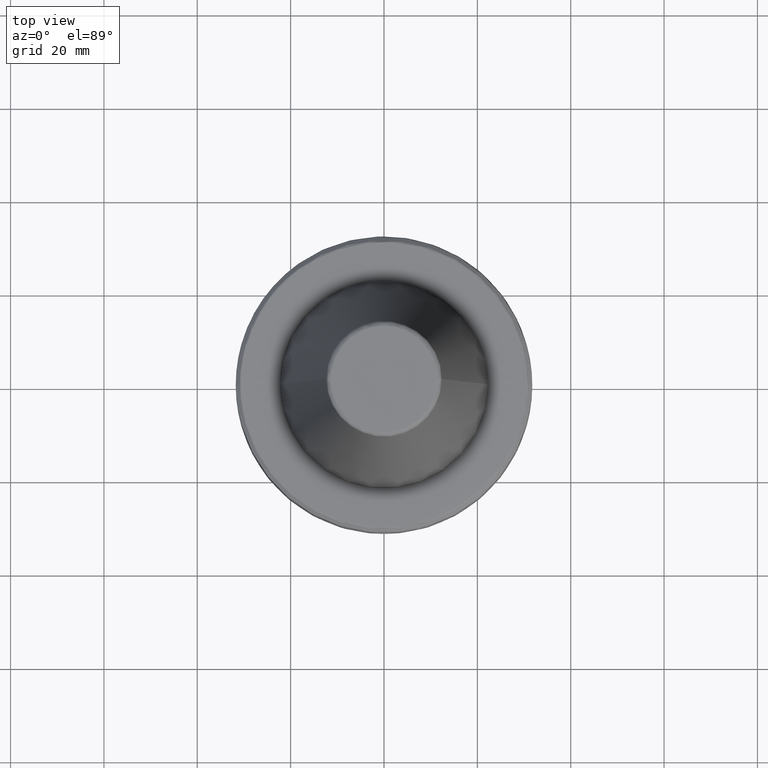
[diagram: clean part render]
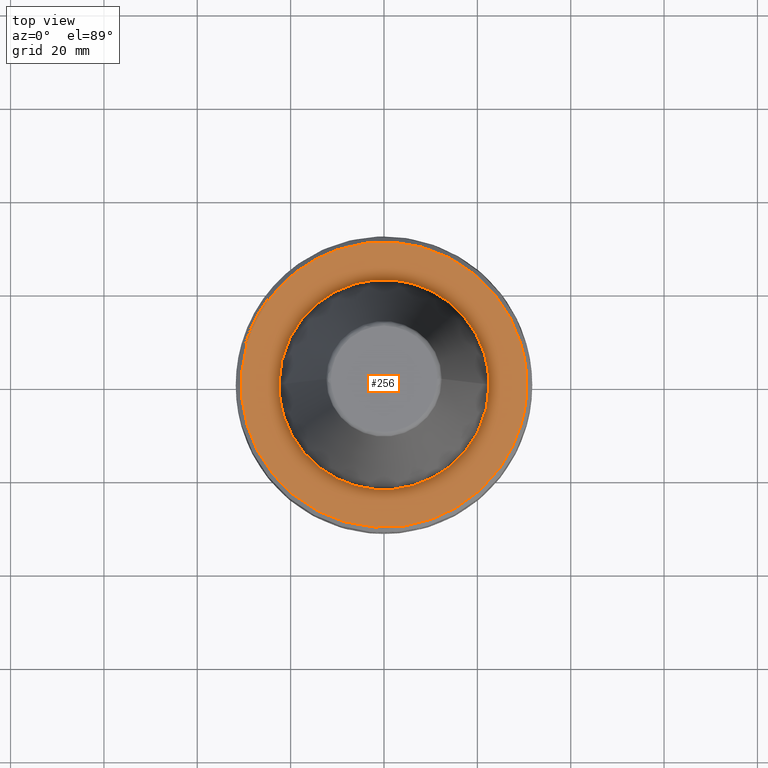
[diagram: same view with one face highlighted and labeled with its STEP entity id]
A machine part, top view. The second image highlights one B-rep face of the part: STEP entity #256.
In plain terms, the highlighted planar face has unit normal (0, 0, 1).
Its self-contained STEP definition (entity closure, byte-faithful):
#8 = CARTESIAN_POINT ( 'NONE',  ( 22.13216582914422800, -4.051871761185046800, -3.199999999999999300 ) ) ;
#22 = CARTESIAN_POINT ( 'NONE',  ( 19.18907189198100100, -11.75138774876444200, -3.200000000000001100 ) ) ;
#31 = CARTESIAN_POINT ( 'NONE',  ( 11.67597141480891300, -19.24838585783804100, -3.200000000000000600 ) ) ;
#37 = CARTESIAN_POINT ( 'NONE',  ( 4.251028217301676900, -22.09485092206981000, -3.200000000000000200 ) ) ;
#38 = EDGE_CURVE ( 'NONE', #2343, #2340, #2352, .T. ) ;
#44 = CARTESIAN_POINT ( 'NONE',  ( -4.051866326836864700, -22.13216683465148900, -3.199999999999999700 ) ) ;
#46 = VERTEX_POINT ( 'NONE', #2482 ) ;
#47 = CIRCLE ( 'NONE', #634, 30.58431457505076500 ) ;
#53 = CARTESIAN_POINT ( 'NONE',  ( 4.071751450878374500, 22.12851860711415200, -3.200000000000000200 ) ) ;
#55 = CARTESIAN_POINT ( 'NONE',  ( -11.75138774876684200, -19.18907189198004900, -3.200000000000000200 ) ) ;
#62 = CARTESIAN_POINT ( 'NONE',  ( 11.99256734167953400, 19.03780993567986700, -3.199999999999999300 ) ) ;
#63 = CARTESIAN_POINT ( 'NONE',  ( -19.24838585782649900, -11.67597141482940200, -3.199999999999999700 ) ) ;
#73 = CARTESIAN_POINT ( 'NONE',  ( 19.82135572083119300, 10.69502432680279600, -3.200000000000000600 ) ) ;
#74 = CARTESIAN_POINT ( 'NONE',  ( -22.09485092206732700, -4.251028217309717600, -3.200000000000000600 ) ) ;
#83 = CARTESIAN_POINT ( 'NONE',  ( 22.10760170058146200, 4.183831549483062200, -3.200000000000000200 ) ) ;
#99 = AXIS2_PLACEMENT_3D ( 'NONE', #991, #2632, #1238 ) ;
#108 = CARTESIAN_POINT ( 'NONE',  ( 2.907343231789928200, 22.31611948088413700, -3.200000000000001100 ) ) ;
#110 = CARTESIAN_POINT ( 'NONE',  ( 28.33583760078838100, 11.62329757012845700, -3.200000000000000600 ) ) ;
#122 = CARTESIAN_POINT ( 'NONE',  ( 22.77429056693588900, 20.45246270164044200, -3.200000000000001100 ) ) ;
#132 = CARTESIAN_POINT ( 'NONE',  ( 16.13498759199762100, 25.98207429179320400, -3.199999999999999700 ) ) ;
#139 = CARTESIAN_POINT ( 'NONE',  ( -0.1069271606581412600, 30.58574494882752100, -3.200000000000001100 ) ) ;
#144 = CARTESIAN_POINT ( 'NONE',  ( -21.99164062164871000, 4.811519987923173100, -3.200000000000001100 ) ) ;
#149 = CARTESIAN_POINT ( 'NONE',  ( -11.24038425294622500, 28.44688173160703600, -3.199999999999999300 ) ) ;
#157 = CARTESIAN_POINT ( 'NONE',  ( -27.71504625243770200, -12.93363446211562200, -3.200000000000000600 ) ) ;
#158 = CARTESIAN_POINT ( 'NONE',  ( -18.93590339580232400, 12.15280497094196100, -3.199999999999999700 ) ) ;
#171 = CARTESIAN_POINT ( 'NONE',  ( -23.04904609324717800, -20.11097302515148000, -3.200000000000001100 ) ) ;
#172 = CARTESIAN_POINT ( 'NONE',  ( -9.504079748845599700, 20.40055232577251900, -3.200000000000001500 ) ) ;
#177 = DIRECTION ( 'NONE',  ( 1.000000000000000000, 0.0000000000000000000, 0.0000000000000000000 ) ) ;
#185 = CARTESIAN_POINT ( 'NONE',  ( -14.07778958758137100, -27.15192223846998900, -3.200000000000000200 ) ) ;
#186 = CARTESIAN_POINT ( 'NONE',  ( -4.139014538617297000, 22.11603594838256000, -3.200000000000000200 ) ) ;
#188 = CARTESIAN_POINT ( 'NONE',  ( 0.0000000000000000000, 0.0000000000000000000, -3.200000000000000200 ) ) ;
#200 = CARTESIAN_POINT ( 'NONE',  ( -5.007473042363042900, -30.17190452210243400, -3.199999999999999700 ) ) ;
#213 = CARTESIAN_POINT ( 'NONE',  ( 4.606748291940482100, -30.23542110148255100, -3.200000000000001100 ) ) ;
#217 = CARTESIAN_POINT ( 'NONE',  ( -24.35467712833948900, 18.50000000000000000, -3.199999999999994400 ) ) ;
#225 = CARTESIAN_POINT ( 'NONE',  ( 13.61336996244277300, -27.38773233231018600, -3.200000000000001500 ) ) ;
#233 = CARTESIAN_POINT ( 'NONE',  ( 23.46525560282735900, -19.64699716460515300, -3.200000000000000200 ) ) ;
#242 = CIRCLE ( 'NONE', #837, 30.58431457505076500 ) ;
#251 = CARTESIAN_POINT ( 'NONE',  ( 21.99164062164117800, -4.811519987949947300, -3.200000000000000600 ) ) ;
#256 = ADVANCED_FACE ( 'NONE', ( #1189, #1955 ), #1567, .T. ) ;
#259 = CARTESIAN_POINT ( 'NONE',  ( 18.93590339580105900, -12.15280497094321500, -3.200000000000000200 ) ) ;
#267 = CARTESIAN_POINT ( 'NONE',  ( 9.504079748831721000, -20.40055232577914500, -3.200000000000000600 ) ) ;
#275 = CARTESIAN_POINT ( 'NONE',  ( 4.139014538615635200, -22.11603594838316400, -3.200000000000000200 ) ) ;
#280 = ORIENTED_EDGE ( 'NONE', *, *, #2230, .T. ) ;
#284 = CARTESIAN_POINT ( 'NONE',  ( -4.811519987949943700, -21.99164062164117100, -3.199999999999999700 ) ) ;
#291 = CARTESIAN_POINT ( 'NONE',  ( 5.873028755120320600, 21.74157624393063400, -3.200000000000000600 ) ) ;
#292 = CARTESIAN_POINT ( 'NONE',  ( -12.15280497094398100, -18.93590339580075400, -3.199999999999999700 ) ) ;
#299 = CARTESIAN_POINT ( 'NONE',  ( 12.23098025896375600, 18.88550870197690300, -3.199999999999999700 ) ) ;
#300 = CARTESIAN_POINT ( 'NONE',  ( -20.40055232576401100, -9.504079748858595500, -3.199999999999999700 ) ) ;
#309 = CARTESIAN_POINT ( 'NONE',  ( 20.66783356944120300, 8.896980882709847500, -3.200000000000000200 ) ) ;
#310 = CARTESIAN_POINT ( 'NONE',  ( -22.11603594838243900, -4.139014538617989700, -3.200000000000000600 ) ) ;
#315 = CARTESIAN_POINT ( 'NONE',  ( 22.12045798509555900, 4.115310202398825700, -3.200000000000000600 ) ) ;
#348 = CARTESIAN_POINT ( 'NONE',  ( 26.94337422490542300, 14.47847139620824000, -3.200000000000000200 ) ) ;
#356 = CARTESIAN_POINT ( 'NONE',  ( 20.78517142377217700, 22.45144644049074500, -3.199999999999999700 ) ) ;
#365 = CARTESIAN_POINT ( 'NONE',  ( 11.80488663217673900, 28.31907149285062900, -3.199999999999999700 ) ) ;
#372 = CARTESIAN_POINT ( 'NONE',  ( -22.50000000000000400, 2.755455298081544800E-015, -3.199999999999999300 ) ) ;
#377 = CARTESIAN_POINT ( 'NONE',  ( -1.037282440228860500, 30.56832190550300900, -3.200000000000000600 ) ) ;
#386 = CARTESIAN_POINT ( 'NONE',  ( -24.35467712833948900, 18.50000000000000000, -3.199999999999994400 ) ) ;
#387 = CARTESIAN_POINT ( 'NONE',  ( -21.36063849916189700, 7.086048807666240500, -3.199999999999999300 ) ) ;
#390 = CARTESIAN_POINT ( 'NONE',  ( -11.95872026362621900, 28.14951867898244600, -3.200000000000000200 ) ) ;
#397 = CARTESIAN_POINT ( 'NONE',  ( -27.65365956857750300, -13.06437642884285200, -3.199999999999999700 ) ) ;
#398 = CARTESIAN_POINT ( 'NONE',  ( -17.98264380950361400, 13.61204652639205500, -3.199999999999999700 ) ) ;
#406 = CARTESIAN_POINT ( 'NONE',  ( -22.34825637510676100, -20.87982665237620600, -3.200000000000000200 ) ) ;
#407 = CARTESIAN_POINT ( 'NONE',  ( -8.590524805356333000, 20.79589492657273900, -3.199999999999999700 ) ) ;
#423 = CARTESIAN_POINT ( 'NONE',  ( -12.11250377912194600, -28.10533704285466800, -3.200000000000001100 ) ) ;
#424 = CARTESIAN_POINT ( 'NONE',  ( -2.741286511587084400, 22.37475781688785000, -3.200000000000000200 ) ) ;
#435 = CARTESIAN_POINT ( 'NONE',  ( -4.757131534841852800, -30.21212539776593100, -3.200000000000000600 ) ) ;
#444 = CARTESIAN_POINT ( 'NONE',  ( 6.650821378641679400, -29.87181404184202200, -3.200000000000000600 ) ) ;
#446 = CARTESIAN_POINT ( 'NONE',  ( -25.46593605709676900, 17.03706203157484100, -3.199999999999999700 ) ) ;
#451 = B_SPLINE_CURVE_WITH_KNOTS ( 'NONE', 3,
 ( #476, #707, #2339, #931, #2575, #1178, #2822, #1414, #8, #1654, #251, #1896, #483, #2122, #716, #2350, #939, #2587, #1188, #2829, #1420, #22, #1663, #259, #1907, #496, #2131, #725, #2360, #948, #2592, #1202, #2837, #1430, #31, #1671, #267, #1915, #503, #2138, #733, #2368, #957, #2598, #1209, #2846, #1437, #37, #1676, #275, #1921, #508, #2147, #743, #2374, #965, #2609, #1215, #2850, #1446, #44, #1682, #284, #1929, #514, #2153, #753, #2382, #974, #2620, #1225, #2857, #1456, #55, #1688, #292, #1936, #529, #2162, #763, #2397, #985, #2628, #1233, #2868, #1463, #63, #1700, #300, #1945, #536, #2169, #770, #2404, #998, #2636, #1242, #2881, #1473, #74, #1706, #310, #1954, #547, #2178, #780 ),
 .UNSPECIFIED., .F., .F.,
 ( 4, 1, 1, 1, 1, 1, 2, 2, 1, 1, 1, 1, 2, 2, 1, 1, 1, 2, 2, 2, 1, 1, 1, 2, 2, 1, 1, 1, 1, 2, 2, 1, 1, 1, 1, 1, 2, 2, 2, 1, 1, 1, 1, 1, 2, 2, 1, 1, 1, 1, 2, 2, 1, 1, 1, 2, 2, 2, 1, 1, 1, 2, 2, 1, 1, 1, 1, 2, 2, 1, 1, 1, 1, 1, 2, 2, 4 ),
 ( 0.0000000000000000000, 0.03124999999999908400, 0.04687499999999860500, 0.05468749999999836900, 0.05859374999999825800, 0.06054687499999819600, 0.06152343749999818900, 0.06249999999999818200, 0.09374999999999732200, 0.1093749999999968900, 0.1171874999999966700, 0.1210937499999965400, 0.1230468749999965400, 0.1249999999999965300, 0.1562499999999963600, 0.1718749999999962500, 0.1796874999999961700, 0.1835937499999960900, 0.1874999999999960000, 0.2499999999999953400, 0.2812499999999949500, 0.2968749999999948400, 0.3046874999999947800, 0.3085937499999947800, 0.3124999999999947800, 0.3437499999999951200, 0.3593749999999953400, 0.3671874999999953900, 0.3710937499999954500, 0.3730468749999955000, 0.3749999999999955600, 0.4062499999999958400, 0.4218749999999960000, 0.4296874999999960600, 0.4335937499999960600, 0.4355468749999960600, 0.4365234374999960600, 0.4374999999999960000, 0.4999999999999953400, 0.5312499999999950000, 0.5468749999999947800, 0.5546874999999946700, 0.5585937499999946700, 0.5605468749999945600, 0.5615234374999945600, 0.5624999999999944500, 0.5937499999999942300, 0.6093749999999941200, 0.6171874999999940000, 0.6210937499999938900, 0.6230468749999940000, 0.6249999999999940000, 0.6562499999999947800, 0.6718749999999952300, 0.6796874999999954500, 0.6835937499999955600, 0.6874999999999955600, 0.7499999999999982200, 0.7812499999999995600, 0.7968750000000002200, 0.8046875000000005600, 0.8085937500000007800, 0.8125000000000008900, 0.8437500000000022200, 0.8593750000000028900, 0.8671875000000032200, 0.8710937500000033300, 0.8730468750000034400, 0.8750000000000034400, 0.9062500000000028900, 0.9218750000000026600, 0.9296875000000025500, 0.9335937500000024400, 0.9355468750000023300, 0.9365234375000023300, 0.9375000000000022200, 1.000000000000000000 ),
 .UNSPECIFIED. ) ;
#453 = CARTESIAN_POINT ( 'NONE',  ( 13.89121605745029900, -27.24785232258835400, -3.199999999999999700 ) ) ;
#469 = CARTESIAN_POINT ( 'NONE',  ( 24.79077054220048000, -17.91356280173779000, -3.199999999999999300 ) ) ;
#476 = CARTESIAN_POINT ( 'NONE',  ( 22.50000000000000400, 0.0000000000000000000, -3.199999999999999300 ) ) ;
#483 = CARTESIAN_POINT ( 'NONE',  ( 21.36063849915200700, -7.086048807701382100, -3.199999999999998800 ) ) ;
#496 = CARTESIAN_POINT ( 'NONE',  ( 17.98264380952407700, -13.61204652636657500, -3.199999999999999700 ) ) ;
#503 = CARTESIAN_POINT ( 'NONE',  ( 8.590524805351991600, -20.79589492657481400, -3.199999999999999700 ) ) ;
#508 = CARTESIAN_POINT ( 'NONE',  ( 2.741286511513688400, -22.37475781689234500, -3.199999999999999700 ) ) ;
#514 = CARTESIAN_POINT ( 'NONE',  ( -7.086048807701388300, -21.36063849915201700, -3.200000000000001100 ) ) ;
#528 = CARTESIAN_POINT ( 'NONE',  ( 7.686207123274499500, 21.14787063409919600, -3.200000000000000600 ) ) ;
#529 = CARTESIAN_POINT ( 'NONE',  ( -13.61204652640028800, -17.98264380950038800, -3.200000000000000200 ) ) ;
#535 = CARTESIAN_POINT ( 'NONE',  ( 14.81177920650271000, 17.00797338683744500, -3.200000000000000600 ) ) ;
#536 = CARTESIAN_POINT ( 'NONE',  ( -20.79589492657008900, -8.590524805360397300, -3.200000000000000200 ) ) ;
#543 = ORIENTED_EDGE ( 'NONE', *, *, #1716, .T. ) ;
#546 = CARTESIAN_POINT ( 'NONE',  ( 20.84958280862257900, 8.458563634141711400, -3.200000000000000200 ) ) ;
#547 = CARTESIAN_POINT ( 'NONE',  ( -22.37479026312430700, -2.741111199249898400, -3.200000000000000600 ) ) ;
#556 = CARTESIAN_POINT ( 'NONE',  ( 22.50000000000000400, 1.376388306145680500, -3.200000000000000200 ) ) ;
#565 = VERTEX_POINT ( 'NONE', #2312 ) ;
#580 = CARTESIAN_POINT ( 'NONE',  ( 26.57327955334341100, 15.14158967653128800, -3.199999999999999300 ) ) ;
#592 = CARTESIAN_POINT ( 'NONE',  ( 19.60237854233957200, 23.47705769605833500, -3.200000000000000200 ) ) ;
#595 = ORIENTED_EDGE ( 'NONE', *, *, #1836, .T. ) ;
#606 = CARTESIAN_POINT ( 'NONE',  ( 6.576107746342494800, 29.91282126789445400, -3.199999999999999300 ) ) ;
#613 = CARTESIAN_POINT ( 'NONE',  ( -3.848954711156217900, 30.36703951690235600, -3.200000000000000200 ) ) ;
#618 = CARTESIAN_POINT ( 'NONE',  ( -21.03591195339058500, 7.984698353433742600, -3.200000000000000600 ) ) ;
#622 = CARTESIAN_POINT ( 'NONE',  ( -12.17478045277850300, 28.05674127324150300, -3.200000000000001100 ) ) ;
#628 = CARTESIAN_POINT ( 'NONE',  ( -26.72045296951694100, -14.91898429064515100, -3.200000000000001100 ) ) ;
#629 = CARTESIAN_POINT ( 'NONE',  ( -15.36086717163463800, 16.45896426178976300, -3.200000000000001100 ) ) ;
#634 = AXIS2_PLACEMENT_3D ( 'NONE', #1263, #2899, #1488 ) ;
#636 = VERTEX_POINT ( 'NONE', #656 ) ;
#643 = VERTEX_POINT ( 'NONE', #1173 ) ;
#644 = CARTESIAN_POINT ( 'NONE',  ( -22.13473294562287600, -21.10604030069013600, -3.200000000000000600 ) ) ;
#645 = CARTESIAN_POINT ( 'NONE',  ( -8.370451108366790300, 20.88510905071707000, -3.200000000000000200 ) ) ;
#656 = CARTESIAN_POINT ( 'NONE',  ( -22.50000000000000400, 2.755455298081544800E-015, -3.199999999999999300 ) ) ;
#657 = CARTESIAN_POINT ( 'NONE',  ( -10.07230210985404100, -28.87952157733320000, -3.200000000000000600 ) ) ;
#658 = CARTESIAN_POINT ( 'NONE',  ( 0.6879287486189594700, 22.50001621479642500, -3.199999999999999300 ) ) ;
#669 = CARTESIAN_POINT ( 'NONE',  ( -3.114025609210415700, -30.46541640381289900, -3.199999999999999700 ) ) ;
#679 = CARTESIAN_POINT ( 'NONE',  ( 8.703095408813183600, -29.32115263377833300, -3.199999999999999700 ) ) ;
#683 = CARTESIAN_POINT ( 'NONE',  ( -28.10145510426450200, 12.21006217780604800, -3.200000000000000200 ) ) ;
#691 = CARTESIAN_POINT ( 'NONE',  ( 16.91770336023969200, -25.53517509604582600, -3.200000000000000600 ) ) ;
#699 = CARTESIAN_POINT ( 'NONE',  ( 25.09107183107505900, -17.48831565734377900, -3.200000000000000200 ) ) ;
#707 = CARTESIAN_POINT ( 'NONE',  ( 22.49999999999999600, -0.6880163828697204400, -3.199999999999998800 ) ) ;
#716 = CARTESIAN_POINT ( 'NONE',  ( 21.03591195338748300, -7.984698353444730200, -3.199999999999999300 ) ) ;
#725 = CARTESIAN_POINT ( 'NONE',  ( 15.36086717163637700, -16.45896426179050900, -3.199999999999999700 ) ) ;
#733 = CARTESIAN_POINT ( 'NONE',  ( 8.370451108365493600, -20.88510905071769100, -3.200000000000001100 ) ) ;
#743 = CARTESIAN_POINT ( 'NONE',  ( -0.6879287486564484900, -22.50001621479418300, -3.200000000000000200 ) ) ;
#753 = CARTESIAN_POINT ( 'NONE',  ( -7.984698353444732000, -21.03591195338748700, -3.200000000000000200 ) ) ;
#762 = CARTESIAN_POINT ( 'NONE',  ( 8.112282896138385300, 20.98673507276721400, -3.200000000000000200 ) ) ;
#763 = CARTESIAN_POINT ( 'NONE',  ( -16.45896426179448100, -15.36086717162741000, -3.200000000000001100 ) ) ;
#769 = CARTESIAN_POINT ( 'NONE',  ( 17.23607257883289300, 14.49938022713325700, -3.200000000000000200 ) ) ;
#770 = CARTESIAN_POINT ( 'NONE',  ( -20.88510905071626700, -8.370451108368008900, -3.199999999999999700 ) ) ;
#779 = CARTESIAN_POINT ( 'NONE',  ( 20.90345235396888100, 8.324524703928553000, -3.200000000000000200 ) ) ;
#780 = CARTESIAN_POINT ( 'NONE',  ( -22.50000000000000400, 2.755455298081544800E-015, -3.199999999999999300 ) ) ;
#783 = ORIENTED_EDGE ( 'NONE', *, *, #1854, .T. ) ;
#812 = CARTESIAN_POINT ( 'NONE',  ( 26.46043628646894400, 15.33791319425575300, -3.200000000000000600 ) ) ;
#819 = CARTESIAN_POINT ( 'NONE',  ( 29.30593451889331300, -8.750000000000001800, -3.199999999999994400 ) ) ;
#824 = CARTESIAN_POINT ( 'NONE',  ( 19.23818591257921900, 23.77638626440857200, -3.200000000000001100 ) ) ;
#833 = CARTESIAN_POINT ( 'NONE',  ( 3.435970030502951900, 30.39351583441294100, -3.199999999999999700 ) ) ;
#835 = CARTESIAN_POINT ( 'NONE',  ( 29.30593451889330900, 8.750000000000010700, -3.199999999999994400 ) ) ;
#837 = AXIS2_PLACEMENT_3D ( 'NONE', #2986, #1587, #177 ) ;
#839 = CARTESIAN_POINT ( 'NONE',  ( -22.31609819896381800, 2.907458251726792000, -3.199999999999999700 ) ) ;
#843 = CARTESIAN_POINT ( 'NONE',  ( -6.624788100412467400, 29.86976700629700700, -3.200000000000001100 ) ) ;
#852 = CARTESIAN_POINT ( 'NONE',  ( -20.95368502148434700, 8.197263642344069000, -3.199999999999999300 ) ) ;
#857 = CARTESIAN_POINT ( 'NONE',  ( -16.56085603394842200, 25.82766579425001700, -3.199999999999999700 ) ) ;
#861 = CARTESIAN_POINT ( 'NONE',  ( -25.60566437920638400, -16.72793511368144300, -3.199999999999999700 ) ) ;
#862 = CARTESIAN_POINT ( 'NONE',  ( -13.42792791067768300, 18.06135158014102500, -3.200000000000000200 ) ) ;
#872 = CARTESIAN_POINT ( 'NONE',  ( -19.62778218944514600, -23.51603751686526800, -3.200000000000001100 ) ) ;
#873 = CARTESIAN_POINT ( 'NONE',  ( -7.603831144568696100, 21.18878749287429700, -3.200000000000000200 ) ) ;
#885 = CARTESIAN_POINT ( 'NONE',  ( -9.578915174272756500, -29.04560989628474800, -3.199999999999999700 ) ) ;
#899 = CARTESIAN_POINT ( 'NONE',  ( 0.7805261269332110000, -30.58432787732824200, -3.200000000000000600 ) ) ;
#908 = CARTESIAN_POINT ( 'NONE',  ( 9.187465360224598100, -29.17179097118384600, -3.200000000000000200 ) ) ;
#913 = CARTESIAN_POINT ( 'NONE',  ( -29.30593451889331300, 8.750000000000008900, -3.199999999999999300 ) ) ;
#916 = CARTESIAN_POINT ( 'NONE',  ( 19.93203895168906900, -23.22435209602277700, -3.199999999999999700 ) ) ;
#923 = CARTESIAN_POINT ( 'NONE',  ( 25.18089566416776700, -17.35872434407947300, -3.200000000000000200 ) ) ;
#931 = CARTESIAN_POINT ( 'NONE',  ( 22.31609819896382200, -2.907458251744042200, -3.200000000000000600 ) ) ;
#939 = CARTESIAN_POINT ( 'NONE',  ( 20.95368502148340500, -8.197263642347369500, -3.199999999999999700 ) ) ;
#941 = ORIENTED_EDGE ( 'NONE', *, *, #1782, .T. ) ;
#948 = CARTESIAN_POINT ( 'NONE',  ( 13.42792791067997600, -18.06135158014202000, -3.199999999999999700 ) ) ;
#957 = CARTESIAN_POINT ( 'NONE',  ( 7.603831144541866000, -21.18878749288407800, -3.200000000000000200 ) ) ;
#961 = AXIS2_PLACEMENT_3D ( 'NONE', #188, #1341, #1352 ) ;
#965 = CARTESIAN_POINT ( 'NONE',  ( -2.907343231839132800, -22.31611948088118800, -3.200000000000000600 ) ) ;
#973 = CARTESIAN_POINT ( 'NONE',  ( 3.501364879195867800, 22.22709431610727600, -3.200000000000000600 ) ) ;
#974 = CARTESIAN_POINT ( 'NONE',  ( -8.197263642347373000, -20.95368502148340900, -3.199999999999999700 ) ) ;
#984 = CARTESIAN_POINT ( 'NONE',  ( 8.237955812653522600, 20.93772414133914200, -3.199999999999999700 ) ) ;
#985 = CARTESIAN_POINT ( 'NONE',  ( -18.06135158014722800, -13.42792791066820300, -3.200000000000000600 ) ) ;
#991 = CARTESIAN_POINT ( 'NONE',  ( 0.0000000000000000000, 0.0000000000000000000, -3.199999999999994400 ) ) ;
#996 = CARTESIAN_POINT ( 'NONE',  ( 18.45365423866382000, 12.87560569879649600, -3.200000000000000200 ) ) ;
#998 = CARTESIAN_POINT ( 'NONE',  ( -21.18878749287234700, -7.603831144579803700, -3.199999999999998800 ) ) ;
#1005 = CARTESIAN_POINT ( 'NONE',  ( 21.54071728404044400, 6.571610993388965500, -3.200000000000000200 ) ) ;
#1032 = VERTEX_POINT ( 'NONE', #835 ) ;
#1036 = CARTESIAN_POINT ( 'NONE',  ( 27.58831379343103400, -13.20180910046895500, -3.199999999999999300 ) ) ;
#1037 = CARTESIAN_POINT ( 'NONE',  ( 28.95764183663448000, 9.916519147392794100, -3.200000000000000600 ) ) ;
#1047 = CARTESIAN_POINT ( 'NONE',  ( 25.61393462943019000, 16.73340307646572400, -3.200000000000000200 ) ) ;
#1058 = CARTESIAN_POINT ( 'NONE',  ( 17.88588114721943300, 24.82288649367548000, -3.199999999999999700 ) ) ;
#1068 = CARTESIAN_POINT ( 'NONE',  ( 2.680059272113613800, 30.46677238501893500, -3.199999999999999700 ) ) ;
#1078 = CARTESIAN_POINT ( 'NONE',  ( -22.17743819738468900, 3.797954953880907400, -3.199999999999999700 ) ) ;
#1081 = CARTESIAN_POINT ( 'NONE',  ( -8.141340568208145000, 29.48124923292406800, -3.199999999999999700 ) ) ;
#1086 = CARTESIAN_POINT ( 'NONE',  ( -20.64043889494947600, 8.988933404968230800, -3.200000000000000600 ) ) ;
#1097 = CARTESIAN_POINT ( 'NONE',  ( -25.32397030503309300, -17.14932757286798500, -3.200000000000000200 ) ) ;
#1098 = CARTESIAN_POINT ( 'NONE',  ( -12.63533988221804100, 18.61742605470986000, -3.200000000000000200 ) ) ;
#1116 = CARTESIAN_POINT ( 'NONE',  ( -16.55116382284848000, -25.74326481162033500, -3.200000000000000200 ) ) ;
#1117 = CARTESIAN_POINT ( 'NONE',  ( -5.341505914849514100, 21.86223353762529300, -3.200000000000000600 ) ) ;
#1129 = CARTESIAN_POINT ( 'NONE',  ( -9.429042497915617100, -29.09460387900038800, -3.200000000000000200 ) ) ;
#1138 = CARTESIAN_POINT ( 'NONE',  ( 3.304367424510945100, -30.40973943781369100, -3.200000000000001500 ) ) ;
#1148 = CARTESIAN_POINT ( 'NONE',  ( 9.331192961516467900, -29.12613594598079600, -3.199999999999999300 ) ) ;
#1161 = CARTESIAN_POINT ( 'NONE',  ( 21.54431431262226600, -21.70996927689732900, -3.200000000000000600 ) ) ;
#1172 = CARTESIAN_POINT ( 'NONE',  ( 26.31643672377798600, -15.62062435596873700, -3.200000000000001100 ) ) ;
#1173 = CARTESIAN_POINT ( 'NONE',  ( -29.30593451889330600, -8.750000000000005300, -3.199999999999998800 ) ) ;
#1178 = CARTESIAN_POINT ( 'NONE',  ( 22.17743819738469600, -3.797954953886299600, -3.200000000000000600 ) ) ;
#1188 = CARTESIAN_POINT ( 'NONE',  ( 20.64043889494423200, -8.988933404973398200, -3.200000000000001100 ) ) ;
#1189 = FACE_OUTER_BOUND ( 'NONE', #1444, .T. ) ;
#1202 = CARTESIAN_POINT ( 'NONE',  ( 12.63533988221884200, -18.61742605471019700, -3.200000000000000200 ) ) ;
#1205 = DIRECTION ( 'NONE',  ( 1.000000000000000000, 0.0000000000000000000, 0.0000000000000000000 ) ) ;
#1209 = CARTESIAN_POINT ( 'NONE',  ( 5.341505914814308500, -21.86223353763812900, -3.199999999999999700 ) ) ;
#1215 = CARTESIAN_POINT ( 'NONE',  ( -3.797919010166013600, -22.17744484798386800, -3.200000000000001100 ) ) ;
#1224 = CARTESIAN_POINT ( 'NONE',  ( 3.946081902440961000, 22.15133589249003200, -3.200000000000000600 ) ) ;
#1225 = CARTESIAN_POINT ( 'NONE',  ( -8.988933404976533500, -20.64043889494298900, -3.199999999999999700 ) ) ;
#1232 = CARTESIAN_POINT ( 'NONE',  ( 10.02279629557633300, 20.16961076430403600, -3.200000000000000600 ) ) ;
#1233 = CARTESIAN_POINT ( 'NONE',  ( -18.61742605471202700, -12.63533988221470800, -3.199999999999999700 ) ) ;
#1238 = DIRECTION ( 'NONE',  ( 1.000000000000000000, 0.0000000000000000000, 0.0000000000000000000 ) ) ;
#1241 = CARTESIAN_POINT ( 'NONE',  ( 18.72563884435662000, 12.47437238289156800, -3.199999999999999300 ) ) ;
#1242 = CARTESIAN_POINT ( 'NONE',  ( -21.86223353762273500, -5.341505914864100600, -3.200000000000000600 ) ) ;
#1251 = CARTESIAN_POINT ( 'NONE',  ( 22.00072453873180600, 4.719991316681966300, -3.200000000000000200 ) ) ;
#1260 = EDGE_LOOP ( 'NONE', ( #1746, #543 ) ) ;
#1263 = CARTESIAN_POINT ( 'NONE',  ( 0.0000000000000000000, 0.0000000000000000000, -3.199999999999994400 ) ) ;
#1285 = CARTESIAN_POINT ( 'NONE',  ( 28.30117587102769500, -11.69968984091869400, -3.200000000000000200 ) ) ;
#1297 = CARTESIAN_POINT ( 'NONE',  ( 24.72355445172999600, 18.00675945258179000, -3.200000000000000200 ) ) ;
#1311 = CARTESIAN_POINT ( 'NONE',  ( 16.53138120580203500, 25.73240088654582500, -3.200000000000000200 ) ) ;
#1321 = CARTESIAN_POINT ( 'NONE',  ( 2.454392795801720400, 30.48577087148501300, -3.200000000000000200 ) ) ;
#1327 = CARTESIAN_POINT ( 'NONE',  ( -29.30593451889330600, -8.750000000000005300, -3.199999999999998800 ) ) ;
#1328 = CARTESIAN_POINT ( 'NONE',  ( -22.13986916256529700, 4.009566559497096200, -3.200000000000000200 ) ) ;
#1331 = CARTESIAN_POINT ( 'NONE',  ( -8.594763330018802000, 29.35224666532914000, -3.200000000000000600 ) ) ;
#1336 = CARTESIAN_POINT ( 'NONE',  ( -28.19324632027987900, -11.86640829661781500, -3.200000000000000200 ) ) ;
#1337 = CARTESIAN_POINT ( 'NONE',  ( -19.53083148215308600, 11.18287332202958400, -3.199999999999999300 ) ) ;
#1341 = DIRECTION ( 'NONE',  ( 0.0000000000000000000, 0.0000000000000000000, 1.000000000000000000 ) ) ;
#1349 = CARTESIAN_POINT ( 'NONE',  ( -25.23910393721046200, -17.27398592321662800, -3.200000000000000200 ) ) ;
#1350 = CARTESIAN_POINT ( 'NONE',  ( -12.39175045570897300, 18.78040064549299600, -3.199999999999999700 ) ) ;
#1352 = DIRECTION ( 'NONE',  ( 1.000000000000000000, 0.0000000000000000000, -0.0000000000000000000 ) ) ;
#1360 = CARTESIAN_POINT ( 'NONE',  ( -14.63881711984340800, -26.85489300922450800, -3.199999999999999700 ) ) ;
#1361 = CARTESIAN_POINT ( 'NONE',  ( -4.407618502888016800, 22.06440325785875700, -3.199999999999999300 ) ) ;
#1374 = CARTESIAN_POINT ( 'NONE',  ( -7.438720675766394800, -29.68542035773223400, -3.200000000000001500 ) ) ;
#1390 = CARTESIAN_POINT ( 'NONE',  ( 4.319105167334708300, -30.27808647421170800, -3.199999999999999700 ) ) ;
#1397 = CARTESIAN_POINT ( 'NONE',  ( 11.34454123684995600, -28.42400519015282300, -3.199999999999999700 ) ) ;
#1403 = CARTESIAN_POINT ( 'NONE',  ( 21.91487604512462500, -21.33423715767088100, -3.200000000000001100 ) ) ;
#1407 = CARTESIAN_POINT ( 'NONE',  ( 27.32133677085897000, -13.74839770497927400, -3.199999999999999700 ) ) ;
#1414 = CARTESIAN_POINT ( 'NONE',  ( 22.13986916256529000, -4.009566559498702000, -3.199999999999999300 ) ) ;
#1420 = CARTESIAN_POINT ( 'NONE',  ( 19.53083148214621900, -11.18287332203636600, -3.200000000000000200 ) ) ;
#1430 = CARTESIAN_POINT ( 'NONE',  ( 12.39175045571029600, -18.78040064549236700, -3.200000000000000200 ) ) ;
#1435 = ORIENTED_EDGE ( 'NONE', *, *, #1963, .T. ) ;
#1437 = CARTESIAN_POINT ( 'NONE',  ( 4.407618502877016700, -22.06440325786277500, -3.200000000000000600 ) ) ;
#1444 = EDGE_LOOP ( 'NONE', ( #941, #280, #595, #1435, #1695, #1523, #783 ) ) ;
#1446 = CARTESIAN_POINT ( 'NONE',  ( -4.009555819172765800, -22.13987114982767300, -3.200000000000000200 ) ) ;
#1455 = CARTESIAN_POINT ( 'NONE',  ( 4.051866326834534100, 22.13216683465163800, -3.200000000000001100 ) ) ;
#1456 = CARTESIAN_POINT ( 'NONE',  ( -11.18287332204048700, -19.53083148214458500, -3.200000000000000600 ) ) ;
#1462 = CARTESIAN_POINT ( 'NONE',  ( 11.75138774875418000, 19.18907189198790100, -3.200000000000001100 ) ) ;
#1463 = CARTESIAN_POINT ( 'NONE',  ( -18.78040064549380300, -12.39175045570773800, -3.200000000000000600 ) ) ;
#1472 = CARTESIAN_POINT ( 'NONE',  ( 19.24838585783446000, 11.67597141481715200, -3.199999999999999700 ) ) ;
#1473 = CARTESIAN_POINT ( 'NONE',  ( -22.06440325785796100, -4.407618502892575000, -3.200000000000000200 ) ) ;
#1482 = CARTESIAN_POINT ( 'NONE',  ( 22.09485092206839200, 4.251028217305421500, -3.199999999999999700 ) ) ;
#1488 = DIRECTION ( 'NONE',  ( 1.000000000000000000, 0.0000000000000000000, 0.0000000000000000000 ) ) ;
#1507 = CARTESIAN_POINT ( 'NONE',  ( 29.30593451889331300, -8.750000000000001800, -3.199999999999994400 ) ) ;
#1520 = CARTESIAN_POINT ( 'NONE',  ( 23.59206616265286600, 19.50355204644443300, -3.200000000000000200 ) ) ;
#1523 = ORIENTED_EDGE ( 'NONE', *, *, #2103, .T. ) ;
#1533 = CARTESIAN_POINT ( 'NONE',  ( 16.20252111302109600, 25.94001894739811200, -3.199999999999999700 ) ) ;
#1537 = AXIS2_PLACEMENT_3D ( 'NONE', #2022, #1917, #1205 ) ;
#1544 = CARTESIAN_POINT ( 'NONE',  ( 0.8252062185939809100, 30.58430088161415800, -3.199999999999999700 ) ) ;
#1553 = CARTESIAN_POINT ( 'NONE',  ( -22.12851860711429500, 4.071751450877952600, -3.199999999999999300 ) ) ;
#1558 = CARTESIAN_POINT ( 'NONE',  ( -10.22499329430633900, 28.83626103400671100, -3.200000000000001100 ) ) ;
#1564 = CARTESIAN_POINT ( 'NONE',  ( -27.77681930598307900, -12.80099507031015300, -3.200000000000000600 ) ) ;
#1565 = CARTESIAN_POINT ( 'NONE',  ( -19.03780993567813700, 11.99256734168333200, -3.200000000000000200 ) ) ;
#1567 = PLANE ( 'NONE',  #961 ) ;
#1583 = CARTESIAN_POINT ( 'NONE',  ( -23.99031363753007500, -19.00230350504480000, -3.200000000000000600 ) ) ;
#1584 = CARTESIAN_POINT ( 'NONE',  ( -10.69502432680689100, 19.82135572082859200, -3.200000000000000600 ) ) ;
#1587 = DIRECTION ( 'NONE',  ( -0.0000000000000000000, -0.0000000000000000000, 1.000000000000000000 ) ) ;
#1598 = CARTESIAN_POINT ( 'NONE',  ( -14.17277443620803400, -27.10247095660044200, -3.200000000000000200 ) ) ;
#1599 = CARTESIAN_POINT ( 'NONE',  ( -4.183831549484186700, 22.10760170058108200, -3.199999999999999700 ) ) ;
#1611 = CARTESIAN_POINT ( 'NONE',  ( -5.357254148467523800, -30.11268354680666400, -3.200000000000000200 ) ) ;
#1619 = CARTESIAN_POINT ( 'NONE',  ( 4.560392810198640800, -30.24244440558943100, -3.200000000000000200 ) ) ;
#1630 = CARTESIAN_POINT ( 'NONE',  ( 13.33348093169566300, -27.52628396580366000, -3.200000000000000200 ) ) ;
#1640 = CARTESIAN_POINT ( 'NONE',  ( 22.63882571490952200, -20.58104395218990500, -3.200000000000000600 ) ) ;
#1654 = CARTESIAN_POINT ( 'NONE',  ( 22.12851860711453600, -4.071751450877114200, -3.200000000000000200 ) ) ;
#1663 = CARTESIAN_POINT ( 'NONE',  ( 19.03780993567572800, -11.99256734168571200, -3.200000000000000200 ) ) ;
#1671 = CARTESIAN_POINT ( 'NONE',  ( 10.69502432678837800, -19.82135572083744200, -3.199999999999999700 ) ) ;
#1676 = CARTESIAN_POINT ( 'NONE',  ( 4.183831549480899500, -22.10760170058227900, -3.200000000000000200 ) ) ;
#1682 = CARTESIAN_POINT ( 'NONE',  ( -4.071751450877116900, -22.12851860711453300, -3.199999999999999700 ) ) ;
#1687 = CARTESIAN_POINT ( 'NONE',  ( 4.811519987909519200, 21.99164062165363400, -3.200000000000000200 ) ) ;
#1688 = CARTESIAN_POINT ( 'NONE',  ( -11.99256734168715800, -19.03780993567515600, -3.200000000000000200 ) ) ;
#1695 = ORIENTED_EDGE ( 'NONE', *, *, #38, .T. ) ;
#1698 = CARTESIAN_POINT ( 'NONE',  ( 12.15280497093997500, 18.93590339580323000, -3.200000000000000200 ) ) ;
#1700 = CARTESIAN_POINT ( 'NONE',  ( -19.82135572081725200, -10.69502432682423000, -3.200000000000000600 ) ) ;
#1705 = CARTESIAN_POINT ( 'NONE',  ( 20.40055232577446300, 9.504079748842523000, -3.200000000000000600 ) ) ;
#1706 = CARTESIAN_POINT ( 'NONE',  ( -22.10760170058084000, -4.183831549485550900, -3.200000000000000200 ) ) ;
#1716 = EDGE_CURVE ( 'NONE', #46, #636, #451, .T. ) ;
#1719 = CARTESIAN_POINT ( 'NONE',  ( 22.11603594838275600, 4.139014538616730300, -3.200000000000001100 ) ) ;
#1746 = ORIENTED_EDGE ( 'NONE', *, *, #1830, .T. ) ;
#1750 = CARTESIAN_POINT ( 'NONE',  ( 27.43651020383327600, 13.53928854120141900, -3.200000000000000600 ) ) ;
#1759 = CARTESIAN_POINT ( 'NONE',  ( 21.46121072407552800, 21.79932372882553800, -3.200000000000000600 ) ) ;
#1771 = CARTESIAN_POINT ( 'NONE',  ( 13.99881594504626000, 27.30134385080020800, -3.200000000000000200 ) ) ;
#1780 = CARTESIAN_POINT ( 'NONE',  ( -22.50000000000000700, 0.6880163828565797300, -3.200000000000001100 ) ) ;
#1782 = EDGE_CURVE ( 'NONE', #565, #1951, #2545, .T. ) ;
#1785 = CARTESIAN_POINT ( 'NONE',  ( -0.7285515701826104100, 30.57722589314202800, -3.200000000000000600 ) ) ;
#1794 = CARTESIAN_POINT ( 'NONE',  ( -21.74157624392201900, 5.873028755144217100, -3.200000000000000200 ) ) ;
#1798 = CARTESIAN_POINT ( 'NONE',  ( -11.74385340892360000, 28.24048383202686100, -3.199999999999999700 ) ) ;
#1804 = CARTESIAN_POINT ( 'NONE',  ( -27.67364674244797800, -13.02197758003961100, -3.199999999999998400 ) ) ;
#1805 = CARTESIAN_POINT ( 'NONE',  ( -18.88550870197691400, 12.23098025896405400, -3.200000000000000200 ) ) ;
#1819 = CARTESIAN_POINT ( 'NONE',  ( -22.56109142496934400, -20.65127541912130800, -3.200000000000000200 ) ) ;
#1820 = CARTESIAN_POINT ( 'NONE',  ( -8.896980882711639900, 20.66783356944006700, -3.199999999999999700 ) ) ;
#1830 = EDGE_CURVE ( 'NONE', #636, #46, #2027, .T. ) ;
#1832 = CARTESIAN_POINT ( 'NONE',  ( -13.24394569617793300, -27.58067624820742500, -3.200000000000000200 ) ) ;
#1833 = CARTESIAN_POINT ( 'NONE',  ( -4.115307463143350800, 22.12045849206799600, -3.199999999999999700 ) ) ;
#1836 = EDGE_CURVE ( 'NONE', #2465, #643, #47, .T. ) ;
#1846 = CARTESIAN_POINT ( 'NONE',  ( -4.857303280930590700, -30.19618385839299200, -3.200000000000000600 ) ) ;
#1854 = EDGE_CURVE ( 'NONE', #1032, #565, #1973, .T. ) ;
#1856 = CARTESIAN_POINT ( 'NONE',  ( 5.458850156843987600, -30.10416084471147600, -3.199999999999999700 ) ) ;
#1868 = CARTESIAN_POINT ( 'NONE',  ( 13.79955834376239000, -27.29438307719062400, -3.200000000000001100 ) ) ;
#1880 = CARTESIAN_POINT ( 'NONE',  ( 24.36043102569355800, -18.50078877836920200, -3.200000000000001100 ) ) ;
#1896 = CARTESIAN_POINT ( 'NONE',  ( 21.74157624390884500, -5.873028755191072900, -3.200000000000000200 ) ) ;
#1907 = CARTESIAN_POINT ( 'NONE',  ( 18.88550870197563500, -12.23098025896565000, -3.200000000000000200 ) ) ;
#1915 = CARTESIAN_POINT ( 'NONE',  ( 8.896980882703543300, -20.66783356944393200, -3.199999999999999300 ) ) ;
#1917 = DIRECTION ( 'NONE',  ( -0.0000000000000000000, -0.0000000000000000000, 1.000000000000000000 ) ) ;
#1921 = CARTESIAN_POINT ( 'NONE',  ( 4.115307463144500100, -22.12045849206793200, -3.200000000000000600 ) ) ;
#1929 = CARTESIAN_POINT ( 'NONE',  ( -5.873028755191068500, -21.74157624390884200, -3.200000000000001100 ) ) ;
#1935 = CARTESIAN_POINT ( 'NONE',  ( 7.086048807648322300, 21.36063849916836300, -3.200000000000000600 ) ) ;
#1936 = CARTESIAN_POINT ( 'NONE',  ( -12.23098025896354500, -18.88550870197710900, -3.200000000000000200 ) ) ;
#1944 = CARTESIAN_POINT ( 'NONE',  ( 13.61204652639695000, 17.98264380950372400, -3.200000000000000200 ) ) ;
#1945 = CARTESIAN_POINT ( 'NONE',  ( -20.66783356943510700, -8.896980882719226700, -3.200000000000000200 ) ) ;
#1951 = VERTEX_POINT ( 'NONE', #386 ) ;
#1953 = CARTESIAN_POINT ( 'NONE',  ( 20.79589492657334300, 8.590524805355373800, -3.199999999999999300 ) ) ;
#1954 = CARTESIAN_POINT ( 'NONE',  ( -22.12045798509555200, -4.115310202398622300, -3.200000000000000200 ) ) ;
#1955 = FACE_BOUND ( 'NONE', #1260, .T. ) ;
#1963 = EDGE_CURVE ( 'NONE', #643, #2343, #2905, .T. ) ;
#1967 = CARTESIAN_POINT ( 'NONE',  ( 22.37479026312431400, 2.741111199236805400, -3.200000000000000600 ) ) ;
#1973 = B_SPLINE_CURVE_WITH_KNOTS ( 'NONE', 3,
 ( #2440, #1037, #110, #1750, #348, #1995, #580, #2213, #812, #2451, #1047, #2690, #1297, #2928, #1520, #122, #1759, #356, #2007, #592, #2224, #824, #2463, #1058, #2697, #1311, #2939, #1533, #132, #1771, #365, #2016, #606, #2236, #833, #2473, #1068, #2707, #1321, #2952, #1544, #139, #1785, #377, #2021, #613, #2250, #843, #2481, #1081, #2716, #1331, #2959, #1558, #149, #1798, #390, #2034, #622, #2257, #857, #2492 ),
 .UNSPECIFIED., .F., .F.,
 ( 4, 1, 1, 1, 1, 2, 2, 1, 2, 2, 2, 1, 1, 2, 2, 1, 1, 1, 2, 2, 2, 1, 1, 1, 1, 2, 2, 1, 2, 2, 2, 1, 1, 2, 2, 1, 1, 1, 2, 2, 4 ),
 ( 0.0000000000000000000, 0.06250000000000223400, 0.09375000000000338600, 0.1093750000000039600, 0.1171875000000042000, 0.1210937500000042500, 0.1250000000000042700, 0.1562500000000047700, 0.1718750000000050200, 0.1875000000000052700, 0.2500000000000063800, 0.2812500000000069900, 0.2968750000000072200, 0.3046875000000072700, 0.3125000000000073300, 0.3437500000000078800, 0.3593750000000081000, 0.3671875000000082700, 0.3710937500000083300, 0.3750000000000083300, 0.5000000000000060000, 0.5625000000000048800, 0.5937500000000043300, 0.6093750000000040000, 0.6171875000000038900, 0.6210937500000037700, 0.6250000000000036600, 0.6562500000000032200, 0.6718750000000030000, 0.6875000000000027800, 0.7500000000000017800, 0.7812500000000014400, 0.7968750000000012200, 0.8046875000000011100, 0.8125000000000011100, 0.8437500000000012200, 0.8593750000000012200, 0.8671875000000012200, 0.8710937500000012200, 0.8750000000000013300, 1.000000000000000000 ),
 .UNSPECIFIED. ) ;
#1995 = CARTESIAN_POINT ( 'NONE',  ( 26.68593816532890600, 14.94335966607923400, -3.199999999999999700 ) ) ;
#2007 = CARTESIAN_POINT ( 'NONE',  ( 19.96233499372355900, 23.17496761739398900, -3.200000000000000600 ) ) ;
#2016 = CARTESIAN_POINT ( 'NONE',  ( 8.333223866109701600, 29.45234853338342900, -3.200000000000000200 ) ) ;
#2021 = CARTESIAN_POINT ( 'NONE',  ( -2.603266312792912100, 30.49913331156268400, -3.200000000000000200 ) ) ;
#2022 = CARTESIAN_POINT ( 'NONE',  ( 0.0000000000000000000, 0.0000000000000000000, -3.199999999999994400 ) ) ;
#2027 = B_SPLINE_CURVE_WITH_KNOTS ( 'NONE', 3,
 ( #372, #1780, #2245, #839, #2477, #1078, #2712, #1328, #2957, #1553, #144, #1794, #387, #2030, #618, #2254, #852, #2486, #1086, #2724, #1337, #2968, #1565, #158, #1805, #398, #2042, #629, #2265, #862, #2500, #1098, #2738, #1350, #2980, #1584, #172, #1820, #407, #2053, #645, #2277, #873, #2512, #1117, #2753, #1361, #2995, #1599, #186, #1833, #424, #2066, #658, #2290, #108, #973, #2619, #1224, #2856, #1455, #53, #1687, #291, #1935, #528, #2161, #762, #2395, #984, #2627, #1232, #2867, #1462, #62, #1698, #299, #1944, #535, #2168, #769, #2403, #996, #2635, #1241, #2880, #1472, #73, #1705, #309, #1953, #546, #2177, #779, #2409, #1005, #2647, #1251, #2891, #1482, #83, #1719, #315, #1967, #556, #2186 ),
 .UNSPECIFIED., .F., .F.,
 ( 4, 1, 1, 1, 1, 1, 2, 2, 1, 1, 1, 1, 2, 2, 1, 1, 1, 2, 2, 2, 1, 1, 1, 2, 2, 1, 1, 1, 1, 2, 2, 1, 1, 1, 1, 1, 2, 2, 2, 1, 1, 1, 1, 1, 2, 2, 1, 1, 1, 1, 2, 2, 1, 1, 1, 2, 2, 2, 1, 1, 1, 2, 2, 1, 1, 1, 1, 2, 2, 1, 1, 1, 1, 1, 2, 2, 4 ),
 ( 0.0000000000000000000, 0.03124999999999839000, 0.04687499999999758500, 0.05468749999999717600, 0.05859374999999699500, 0.06054687499999689800, 0.06152343749999685700, 0.06249999999999680800, 0.09374999999999644700, 0.1093749999999962800, 0.1171874999999962000, 0.1210937499999961300, 0.1230468749999961400, 0.1249999999999961400, 0.1562499999999958900, 0.1718749999999958400, 0.1796874999999957800, 0.1835937499999957800, 0.1874999999999957800, 0.2499999999999961100, 0.2812499999999963400, 0.2968749999999964500, 0.3046874999999965000, 0.3085937499999965600, 0.3124999999999965600, 0.3437499999999969500, 0.3593749999999971700, 0.3671874999999973400, 0.3710937499999974500, 0.3730468749999974500, 0.3749999999999974500, 0.4062499999999965000, 0.4218749999999960000, 0.4296874999999957800, 0.4335937499999956700, 0.4355468749999956100, 0.4365234374999956100, 0.4374999999999956100, 0.4999999999999944500, 0.5312499999999938900, 0.5468749999999936700, 0.5546874999999936700, 0.5585937499999935600, 0.5605468749999935600, 0.5615234374999934500, 0.5624999999999934500, 0.5937499999999932300, 0.6093749999999931200, 0.6171874999999931200, 0.6210937499999930100, 0.6230468749999930100, 0.6249999999999930100, 0.6562499999999930100, 0.6718749999999931200, 0.6796874999999932300, 0.6835937499999932300, 0.6874999999999932300, 0.7499999999999935600, 0.7812499999999936700, 0.7968749999999937800, 0.8046874999999938900, 0.8085937499999938900, 0.8124999999999938900, 0.8437499999999942300, 0.8593749999999944500, 0.8671874999999946700, 0.8710937499999947800, 0.8730468749999948900, 0.8749999999999950000, 0.9062499999999963400, 0.9218749999999971100, 0.9296874999999975600, 0.9335937499999976700, 0.9355468749999977800, 0.9365234374999977800, 0.9374999999999978900, 1.000000000000000000 ),
 .UNSPECIFIED. ) ;
#2030 = CARTESIAN_POINT ( 'NONE',  ( -21.14787063409543700, 7.686207123284956900, -3.200000000000000200 ) ) ;
#2034 = CARTESIAN_POINT ( 'NONE',  ( -12.10176357993545800, 28.08831770798233800, -3.200000000000001100 ) ) ;
#2041 = CARTESIAN_POINT ( 'NONE',  ( -27.28410426008420900, -13.84330885026471600, -3.199999999999999300 ) ) ;
#2042 = CARTESIAN_POINT ( 'NONE',  ( -17.00797338682269500, 14.81177920651246400, -3.200000000000000600 ) ) ;
#2052 = CARTESIAN_POINT ( 'NONE',  ( -22.20554153728712200, -21.03152593330405300, -3.200000000000000600 ) ) ;
#2053 = CARTESIAN_POINT ( 'NONE',  ( -8.458563634142274500, 20.84958280862222700, -3.200000000000000200 ) ) ;
#2065 = CARTESIAN_POINT ( 'NONE',  ( -10.75810060098333100, -28.63517167118836300, -3.200000000000000600 ) ) ;
#2066 = CARTESIAN_POINT ( 'NONE',  ( -1.375857497237935400, 22.49996757040714000, -3.199999999999999700 ) ) ;
#2081 = CARTESIAN_POINT ( 'NONE',  ( -4.705085878610024300, -30.22027126947322600, -3.199999999999999700 ) ) ;
#2090 = CARTESIAN_POINT ( 'NONE',  ( 8.022211266182147000, -29.51842591294642700, -3.199999999999999300 ) ) ;
#2092 = CARTESIAN_POINT ( 'NONE',  ( -26.43773944749934700, 15.48610090929884100, -3.200000000000000600 ) ) ;
#2096 = CARTESIAN_POINT ( 'NONE',  ( 15.48792760813897800, -26.42690957763580100, -3.200000000000000200 ) ) ;
#2103 = EDGE_CURVE ( 'NONE', #2340, #1032, #242, .T. ) ;
#2105 = CARTESIAN_POINT ( 'NONE',  ( 25.00162825172242300, -17.61641936754373800, -3.200000000000001100 ) ) ;
#2122 = CARTESIAN_POINT ( 'NONE',  ( 21.14787063408966400, -7.686207123305460500, -3.200000000000000600 ) ) ;
#2131 = CARTESIAN_POINT ( 'NONE',  ( 17.00797338681919900, -14.81177920651095200, -3.200000000000000600 ) ) ;
#2138 = CARTESIAN_POINT ( 'NONE',  ( 8.458563634139736100, -20.84958280862343500, -3.200000000000000600 ) ) ;
#2147 = CARTESIAN_POINT ( 'NONE',  ( 1.375857497312903900, -22.49996757041163400, -3.199999999999999300 ) ) ;
#2153 = CARTESIAN_POINT ( 'NONE',  ( -7.686207123305462300, -21.14787063408966000, -3.200000000000000600 ) ) ;
#2161 = CARTESIAN_POINT ( 'NONE',  ( 7.984698353428139100, 21.03591195339260300, -3.200000000000000200 ) ) ;
#2162 = CARTESIAN_POINT ( 'NONE',  ( -14.81177920650302200, -17.00797338683712900, -3.199999999999999300 ) ) ;
#2168 = CARTESIAN_POINT ( 'NONE',  ( 16.45896426179462000, 15.36086717162726200, -3.199999999999999700 ) ) ;
#2169 = CARTESIAN_POINT ( 'NONE',  ( -20.84958280862066700, -8.458563634144654800, -3.200000000000000600 ) ) ;
#2177 = CARTESIAN_POINT ( 'NONE',  ( 20.88510905071724400, 8.370451108366499000, -3.200000000000001100 ) ) ;
#2178 = CARTESIAN_POINT ( 'NONE',  ( -22.50000000000000700, -1.376388306158772500, -3.200000000000000600 ) ) ;
#2186 = CARTESIAN_POINT ( 'NONE',  ( 22.50000000000000400, 0.0000000000000000000, -3.199999999999999300 ) ) ;
#2213 = CARTESIAN_POINT ( 'NONE',  ( 26.49765628487155300, 15.27351905694540200, -3.200000000000001500 ) ) ;
#2219 = CARTESIAN_POINT ( 'NONE',  ( 30.58431457505076500, 0.0000000000000000000, -3.199999999999995300 ) ) ;
#2224 = CARTESIAN_POINT ( 'NONE',  ( 19.36078262651082200, 23.67667543167396400, -3.200000000000001100 ) ) ;
#2230 = EDGE_CURVE ( 'NONE', #1951, #2465, #2361, .T. ) ;
#2236 = CARTESIAN_POINT ( 'NONE',  ( 4.488890650663459600, 30.26424933308542700, -3.199999999999999700 ) ) ;
#2245 = CARTESIAN_POINT ( 'NONE',  ( -22.45304634867162000, 1.715799754908170300, -3.200000000000000600 ) ) ;
#2250 = CARTESIAN_POINT ( 'NONE',  ( -5.703788022667264800, 30.05429890996832800, -3.200000000000000200 ) ) ;
#2254 = CARTESIAN_POINT ( 'NONE',  ( -20.98673507276603100, 8.112282896141666200, -3.200000000000000600 ) ) ;
#2257 = CARTESIAN_POINT ( 'NONE',  ( -14.47569103928371700, 27.05153356264569100, -3.200000000000000200 ) ) ;
#2264 = CARTESIAN_POINT ( 'NONE',  ( -25.98948903614969200, -16.13194971530072100, -3.200000000000000200 ) ) ;
#2265 = CARTESIAN_POINT ( 'NONE',  ( -14.49938022714616500, 17.23607257882436300, -3.199999999999999700 ) ) ;
#2276 = CARTESIAN_POINT ( 'NONE',  ( -20.89129424424418200, -22.40114452922760100, -3.199999999999999700 ) ) ;
#2277 = CARTESIAN_POINT ( 'NONE',  ( -8.324524703927975700, 20.90345235396907600, -3.199999999999999700 ) ) ;
#2289 = CARTESIAN_POINT ( 'NONE',  ( -9.727253638774389100, -28.99655467840012000, -3.200000000000000200 ) ) ;
#2290 = CARTESIAN_POINT ( 'NONE',  ( 1.715646394992351700, 22.45307472456536100, -3.200000000000000600 ) ) ;
#2302 = CARTESIAN_POINT ( 'NONE',  ( -1.561052253866448600, -30.58428797049582900, -3.200000000000000200 ) ) ;
#2312 = CARTESIAN_POINT ( 'NONE',  ( -18.49999999999998900, 24.35467712833949600, -3.199999999999994400 ) ) ;
#2314 = CARTESIAN_POINT ( 'NONE',  ( 9.042334779843894700, -29.21737119051421100, -3.200000000000000200 ) ) ;
#2317 = CARTESIAN_POINT ( 'NONE',  ( -28.78023418526829900, 10.51070166328857000, -3.200000000000000200 ) ) ;
#2324 = CARTESIAN_POINT ( 'NONE',  ( 18.95028892444334900, -24.02085740249146500, -3.200000000000000600 ) ) ;
#2333 = CARTESIAN_POINT ( 'NONE',  ( 25.15049554832293300, -17.40274506740674100, -3.200000000000001100 ) ) ;
#2339 = CARTESIAN_POINT ( 'NONE',  ( 22.45304634867161300, -1.715799754931167900, -3.200000000000000200 ) ) ;
#2340 = VERTEX_POINT ( 'NONE', #2219 ) ;
#2343 = VERTEX_POINT ( 'NONE', #819 ) ;
#2350 = CARTESIAN_POINT ( 'NONE',  ( 20.98673507276421500, -8.112282896148103700, -3.200000000000000200 ) ) ;
#2352 = CIRCLE ( 'NONE', #1537, 30.58431457505076500 ) ;
#2360 = CARTESIAN_POINT ( 'NONE',  ( 14.49938022714922100, -17.23607257882569900, -3.199999999999999300 ) ) ;
#2361 = B_SPLINE_CURVE_WITH_KNOTS ( 'NONE', 3,
 ( #217, #446, #2092, #683, #2317, #913 ),
 .UNSPECIFIED., .F., .F.,
 ( 4, 2, 4 ),
 ( 0.0000000000000000000, 0.5000000000000000000, 1.000000000000000000 ),
 .UNSPECIFIED. ) ;
#2368 = CARTESIAN_POINT ( 'NONE',  ( 8.324524703929661500, -20.90345235396846500, -3.200000000000000600 ) ) ;
#2374 = CARTESIAN_POINT ( 'NONE',  ( -1.715646395057947200, -22.45307472456143200, -3.200000000000000600 ) ) ;
#2382 = CARTESIAN_POINT ( 'NONE',  ( -8.112282896148109000, -20.98673507276421500, -3.200000000000000200 ) ) ;
#2395 = CARTESIAN_POINT ( 'NONE',  ( 8.197263642342381500, 20.95368502148494400, -3.199999999999999700 ) ) ;
#2397 = CARTESIAN_POINT ( 'NONE',  ( -17.23607257883263300, -14.49938022713351800, -3.200000000000000200 ) ) ;
#2403 = CARTESIAN_POINT ( 'NONE',  ( 18.06135158014742400, 13.42792791066801300, -3.200000000000000600 ) ) ;
#2404 = CARTESIAN_POINT ( 'NONE',  ( -20.90345235396920400, -8.324524703927284700, -3.199999999999999700 ) ) ;
#2409 = CARTESIAN_POINT ( 'NONE',  ( 21.18878749287739200, 7.603831144559534600, -3.200000000000000600 ) ) ;
#2439 = CARTESIAN_POINT ( 'NONE',  ( 27.54438001541174000, -13.29323302809550500, -3.200000000000000200 ) ) ;
#2440 = CARTESIAN_POINT ( 'NONE',  ( 29.30593451889330900, 8.750000000000010700, -3.199999999999994400 ) ) ;
#2451 = CARTESIAN_POINT ( 'NONE',  ( 26.10782023934454800, 15.94270692371157900, -3.200000000000000600 ) ) ;
#2463 = CARTESIAN_POINT ( 'NONE',  ( 18.63100279129773500, 24.26260340260907000, -3.200000000000000600 ) ) ;
#2465 = VERTEX_POINT ( 'NONE', #2722 ) ;
#2473 = CARTESIAN_POINT ( 'NONE',  ( 2.907181702342454900, 30.44653720225969800, -3.200000000000001100 ) ) ;
#2477 = CARTESIAN_POINT ( 'NONE',  ( -22.22708190165376200, 3.501431974159047400, -3.199999999999999700 ) ) ;
#2481 = CARTESIAN_POINT ( 'NONE',  ( -7.688059179597152200, 29.60519698498956800, -3.200000000000000200 ) ) ;
#2482 = CARTESIAN_POINT ( 'NONE',  ( 22.50000000000000400, 0.0000000000000000000, -3.199999999999999300 ) ) ;
#2485 = CARTESIAN_POINT ( 'NONE',  ( -29.08260568820441300, -9.497984010097116700, -3.200000000000000200 ) ) ;
#2486 = CARTESIAN_POINT ( 'NONE',  ( -20.93772414133938800, 8.237955812653009200, -3.200000000000000200 ) ) ;
#2492 = CARTESIAN_POINT ( 'NONE',  ( -18.49999999999998900, 24.35467712833949600, -3.199999999999994400 ) ) ;
#2499 = CARTESIAN_POINT ( 'NONE',  ( -25.40916637816982900, -17.02330348438504600, -3.200000000000001100 ) ) ;
#2500 = CARTESIAN_POINT ( 'NONE',  ( -12.87560569880213800, 18.45365423866010000, -3.200000000000001100 ) ) ;
#2511 = CARTESIAN_POINT ( 'NONE',  ( -17.59524950984059200, -25.03042619208175200, -3.199999999999999300 ) ) ;
#2512 = CARTESIAN_POINT ( 'NONE',  ( -6.571610993404996200, 21.54071728403503300, -3.199999999999999700 ) ) ;
#2527 = CARTESIAN_POINT ( 'NONE',  ( -9.479920520532862900, -29.07806852477902400, -3.200000000000000600 ) ) ;
#2541 = CARTESIAN_POINT ( 'NONE',  ( 1.948029713514684000, -30.53976102089345400, -3.200000000000000600 ) ) ;
#2545 = CIRCLE ( 'NONE', #99, 30.58431457505076500 ) ;
#2551 = CARTESIAN_POINT ( 'NONE',  ( 9.284161809036266500, -29.14115916764551200, -3.199999999999999700 ) ) ;
#2557 = CARTESIAN_POINT ( 'NONE',  ( 21.01696416247756700, -22.22623960068250100, -3.200000000000000200 ) ) ;
#2566 = CARTESIAN_POINT ( 'NONE',  ( 25.66906082884532800, -16.64808964171818000, -3.199999999999999300 ) ) ;
#2575 = CARTESIAN_POINT ( 'NONE',  ( 22.22708190165376200, -3.501431974169107800, -3.200000000000000200 ) ) ;
#2587 = CARTESIAN_POINT ( 'NONE',  ( 20.93772414133970000, -8.237955812652693100, -3.200000000000000200 ) ) ;
#2592 = CARTESIAN_POINT ( 'NONE',  ( 12.87560569880346700, -18.45365423866068300, -3.200000000000000600 ) ) ;
#2598 = CARTESIAN_POINT ( 'NONE',  ( 6.571610993358049800, -21.54071728405216400, -3.200000000000000600 ) ) ;
#2609 = CARTESIAN_POINT ( 'NONE',  ( -3.501364879224580000, -22.22709431610556100, -3.200000000000000600 ) ) ;
#2619 = CARTESIAN_POINT ( 'NONE',  ( 3.797919010150632600, 22.17744484798479100, -3.200000000000000600 ) ) ;
#2620 = CARTESIAN_POINT ( 'NONE',  ( -8.237955812652499400, -20.93772414133978200, -3.199999999999999700 ) ) ;
#2627 = CARTESIAN_POINT ( 'NONE',  ( 8.988933404959995600, 20.64043889495324200, -3.200000000000000600 ) ) ;
#2628 = CARTESIAN_POINT ( 'NONE',  ( -18.45365423866372400, -12.87560569879659900, -3.200000000000001100 ) ) ;
#2632 = DIRECTION ( 'NONE',  ( -0.0000000000000000000, -0.0000000000000000000, 1.000000000000000000 ) ) ;
#2635 = CARTESIAN_POINT ( 'NONE',  ( 18.61742605471209400, 12.63533988221464600, -3.199999999999999700 ) ) ;
#2636 = CARTESIAN_POINT ( 'NONE',  ( -21.54071728403163600, -6.571610993424445500, -3.200000000000000600 ) ) ;
#2647 = CARTESIAN_POINT ( 'NONE',  ( 21.86223353762935800, 5.341505914837489000, -3.200000000000000600 ) ) ;
#2677 = CARTESIAN_POINT ( 'NONE',  ( 27.61100680695630400, -13.15427429998554700, -3.199999999999999700 ) ) ;
#2690 = CARTESIAN_POINT ( 'NONE',  ( 25.08445269889310200, 17.50055599943942000, -3.200000000000000200 ) ) ;
#2697 = CARTESIAN_POINT ( 'NONE',  ( 16.98769424001547900, 25.43598951906484400, -3.200000000000000200 ) ) ;
#2707 = CARTESIAN_POINT ( 'NONE',  ( 2.528533460623899400, 30.47970956005763600, -3.199999999999998800 ) ) ;
#2712 = CARTESIAN_POINT ( 'NONE',  ( -22.15133245634663700, 3.946100473368277900, -3.200000000000000200 ) ) ;
#2716 = CARTESIAN_POINT ( 'NONE',  ( -8.442993445781290500, 29.39627059819669300, -3.200000000000000200 ) ) ;
#2722 = CARTESIAN_POINT ( 'NONE',  ( -29.30593451889331300, 8.750000000000008900, -3.199999999999999300 ) ) ;
#2723 = CARTESIAN_POINT ( 'NONE',  ( -28.70585737795346400, -10.60399651555045600, -3.199999999999999300 ) ) ;
#2724 = CARTESIAN_POINT ( 'NONE',  ( -20.16961076429744200, 10.02279629559074100, -3.199999999999999300 ) ) ;
#2728 = CARTESIAN_POINT ( 'NONE',  ( 27.47815279795154100, -13.43017972973703400, -3.199999999999999700 ) ) ;
#2737 = CARTESIAN_POINT ( 'NONE',  ( -25.26695455758170900, -17.23321866383344100, -3.200000000000001500 ) ) ;
#2738 = CARTESIAN_POINT ( 'NONE',  ( -12.47437238289334600, 18.72563884435544800, -3.200000000000000200 ) ) ;
#2752 = CARTESIAN_POINT ( 'NONE',  ( -15.28437999710880700, -26.49728736112676600, -3.200000000000000200 ) ) ;
#2753 = CARTESIAN_POINT ( 'NONE',  ( -4.719991316688983800, 22.00072453872944300, -3.200000000000000600 ) ) ;
#2764 = CARTESIAN_POINT ( 'NONE',  ( -8.608449994990852600, -29.35905586420431500, -3.200000000000001500 ) ) ;
#2776 = CARTESIAN_POINT ( 'NONE',  ( 3.981098828338542500, -30.32522191696400100, -3.200000000000000600 ) ) ;
#2789 = CARTESIAN_POINT ( 'NONE',  ( 10.17404257737704800, -28.85454279251768000, -3.200000000000000600 ) ) ;
#2800 = CARTESIAN_POINT ( 'NONE',  ( 21.76708313655939300, -21.48502183610759900, -3.200000000000000200 ) ) ;
#2816 = CARTESIAN_POINT ( 'NONE',  ( 26.99856130459875900, -14.37953634111175700, -3.200000000000001100 ) ) ;
#2822 = CARTESIAN_POINT ( 'NONE',  ( 22.15133245634663300, -3.946100473371058700, -3.199999999999999700 ) ) ;
#2829 = CARTESIAN_POINT ( 'NONE',  ( 20.16961076428826500, -10.02279629559978100, -3.199999999999998800 ) ) ;
#2837 = CARTESIAN_POINT ( 'NONE',  ( 12.47437238289376500, -18.72563884435562500, -3.200000000000000600 ) ) ;
#2846 = CARTESIAN_POINT ( 'NONE',  ( 4.719991316668444600, -22.00072453873692200, -3.200000000000000200 ) ) ;
#2850 = CARTESIAN_POINT ( 'NONE',  ( -3.946081902448917300, -22.15133589248955200, -3.200000000000000600 ) ) ;
#2856 = CARTESIAN_POINT ( 'NONE',  ( 4.009555819168163300, 22.13987114982794000, -3.199999999999999700 ) ) ;
#2857 = CARTESIAN_POINT ( 'NONE',  ( -10.02279629560528400, -20.16961076428609100, -3.200000000000000600 ) ) ;
#2867 = CARTESIAN_POINT ( 'NONE',  ( 11.18287332201877700, 19.53083148215803900, -3.200000000000000600 ) ) ;
#2868 = CARTESIAN_POINT ( 'NONE',  ( -18.72563884435658800, -12.47437238289159500, -3.200000000000000200 ) ) ;
#2880 = CARTESIAN_POINT ( 'NONE',  ( 18.78040064549280100, 12.39175045570927500, -3.199999999999998800 ) ) ;
#2881 = CARTESIAN_POINT ( 'NONE',  ( -22.00072453872795100, -4.719991316697491600, -3.200000000000000600 ) ) ;
#2891 = CARTESIAN_POINT ( 'NONE',  ( 22.06440325786003600, 4.407618502884258900, -3.200000000000000200 ) ) ;
#2899 = DIRECTION ( 'NONE',  ( -0.0000000000000000000, -0.0000000000000000000, 1.000000000000000000 ) ) ;
#2905 = B_SPLINE_CURVE_WITH_KNOTS ( 'NONE', 3,
 ( #1327, #2485, #2723, #1336, #2967, #1564, #157, #1804, #397, #2041, #628, #2264, #861, #2499, #1097, #2737, #1349, #2979, #1583, #171, #1819, #406, #2052, #644, #2276, #872, #2511, #1116, #2752, #1360, #2994, #1598, #185, #1832, #423, #2065, #657, #2289, #885, #2527, #1129, #2764, #1374, #3006, #1611, #200, #1846, #435, #2081, #669, #2302, #899, #2541, #1138, #2776, #1390, #3011, #1619, #213, #1856, #444, #2090, #679, #2314, #908, #2551, #1148, #2789, #1397, #3023, #1630, #225, #1868, #453, #2096, #691, #2324, #916, #2557, #1161, #2800, #1403, #3033, #1640, #233, #1880, #469, #2105, #699, #2333, #923, #2566, #1172, #2816, #1407, #2728, #2439, #1036, #2677, #1285, #2920, #1507 ),
 .UNSPECIFIED., .F., .F.,
 ( 4, 1, 1, 1, 1, 2, 2, 1, 1, 1, 1, 2, 2, 1, 1, 1, 2, 2, 2, 1, 1, 1, 2, 2, 1, 1, 1, 1, 2, 2, 1, 1, 1, 1, 2, 2, 2, 1, 1, 1, 1, 2, 2, 1, 1, 1, 1, 2, 2, 1, 1, 1, 2, 2, 2, 1, 1, 1, 2, 2, 1, 1, 1, 1, 2, 2, 1, 1, 1, 1, 2, 2, 4 ),
 ( 0.0000000000000000000, 0.03124999999999780000, 0.04687499999999667600, 0.05468749999999608000, 0.05859374999999581600, 0.06054687499999568400, 0.06249999999999554500, 0.09374999999999403300, 0.1093749999999932600, 0.1171874999999928500, 0.1210937499999925900, 0.1230468749999924500, 0.1249999999999923100, 0.1562499999999910300, 0.1718749999999904200, 0.1796874999999900600, 0.1835937499999899200, 0.1874999999999897900, 0.2499999999999895600, 0.2812499999999894000, 0.2968749999999894500, 0.3046874999999894500, 0.3085937499999895100, 0.3124999999999895600, 0.3437499999999902300, 0.3593749999999906200, 0.3671874999999908400, 0.3710937499999909000, 0.3730468749999910100, 0.3749999999999910600, 0.4062499999999912800, 0.4218749999999913400, 0.4296874999999913400, 0.4335937499999913400, 0.4355468749999913400, 0.4374999999999912800, 0.4999999999999916700, 0.5312499999999919000, 0.5468749999999920100, 0.5546874999999921200, 0.5585937499999922300, 0.5605468749999922300, 0.5624999999999921200, 0.5937499999999924500, 0.6093749999999925600, 0.6171874999999925600, 0.6210937499999925600, 0.6230468749999925600, 0.6249999999999925600, 0.6562499999999924500, 0.6718749999999923400, 0.6796874999999923400, 0.6835937499999924500, 0.6874999999999924500, 0.7499999999999933400, 0.7812499999999938900, 0.7968749999999941200, 0.8046874999999942300, 0.8085937499999942300, 0.8124999999999943400, 0.8437499999999948900, 0.8593749999999952300, 0.8671874999999954500, 0.8710937499999956700, 0.8730468749999956700, 0.8749999999999957800, 0.9062499999999968900, 0.9218749999999974500, 0.9296874999999976700, 0.9335937499999976700, 0.9355468749999977800, 0.9374999999999978900, 1.000000000000000000 ),
 .UNSPECIFIED. ) ;
#2920 = CARTESIAN_POINT ( 'NONE',  ( 28.85918037031911600, -10.24629117990394200, -3.200000000000000600 ) ) ;
#2928 = CARTESIAN_POINT ( 'NONE',  ( 24.54047191478592900, 18.25550594146890800, -3.200000000000001100 ) ) ;
#2939 = CARTESIAN_POINT ( 'NONE',  ( 16.33427142386522500, 25.85726144149187200, -3.200000000000000200 ) ) ;
#2952 = CARTESIAN_POINT ( 'NONE',  ( 1.756429892742336700, 30.54018886217601300, -3.200000000000000200 ) ) ;
#2957 = CARTESIAN_POINT ( 'NONE',  ( -22.13216582914423100, 4.051871761184235000, -3.200000000000000200 ) ) ;
#2959 = CARTESIAN_POINT ( 'NONE',  ( -9.340167935440481600, 29.12987215590241500, -3.200000000000000200 ) ) ;
#2967 = CARTESIAN_POINT ( 'NONE',  ( -27.91867295084787800, -12.49063015166110600, -3.199999999999999300 ) ) ;
#2968 = CARTESIAN_POINT ( 'NONE',  ( -19.18907189198502300, 11.75138774876048900, -3.200000000000000600 ) ) ;
#2979 = CARTESIAN_POINT ( 'NONE',  ( -24.73772846016212800, -18.00390437552417200, -3.200000000000001100 ) ) ;
#2980 = CARTESIAN_POINT ( 'NONE',  ( -11.67597141481949700, 19.24838585783297900, -3.200000000000001100 ) ) ;
#2986 = CARTESIAN_POINT ( 'NONE',  ( 0.0000000000000000000, 0.0000000000000000000, -3.199999999999994400 ) ) ;
#2994 = CARTESIAN_POINT ( 'NONE',  ( -14.35953925150205800, -27.00399422412593600, -3.200000000000000200 ) ) ;
#2995 = CARTESIAN_POINT ( 'NONE',  ( -4.251028217307362100, 22.09485092206773900, -3.200000000000001100 ) ) ;
#3006 = CARTESIAN_POINT ( 'NONE',  ( -6.054356345058203600, -29.98396483374370200, -3.199999999999999300 ) ) ;
#3011 = CARTESIAN_POINT ( 'NONE',  ( 4.463888020564998400, -30.25684056681911800, -3.199999999999998800 ) ) ;
#3023 = CARTESIAN_POINT ( 'NONE',  ( 12.67616131524538200, -27.83926536632106900, -3.199999999999999300 ) ) ;
#3033 = CARTESIAN_POINT ( 'NONE',  ( 21.98943496481200600, -21.25737027114117000, -3.200000000000001100 ) ) ;